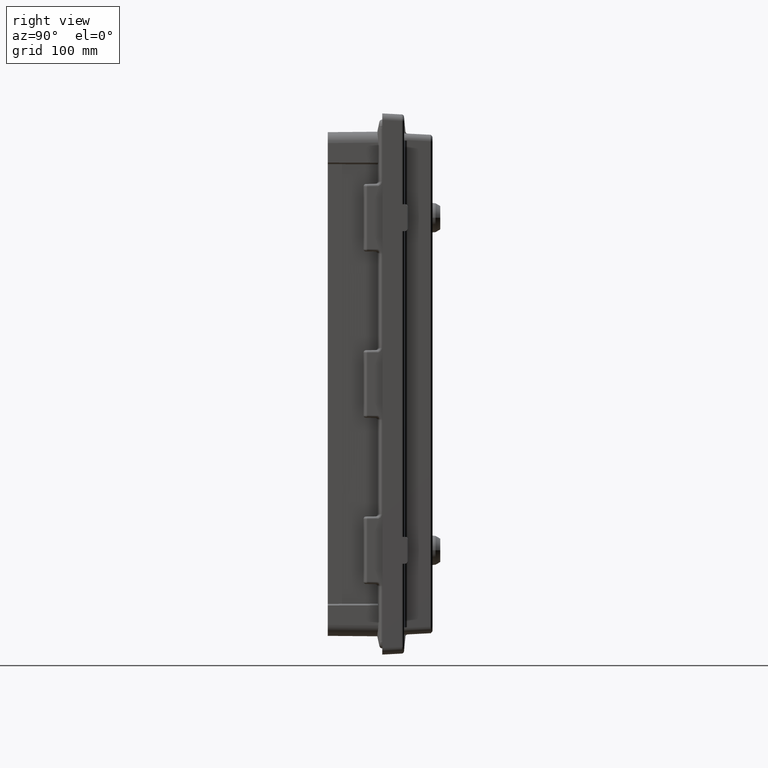
[diagram: clean part render]
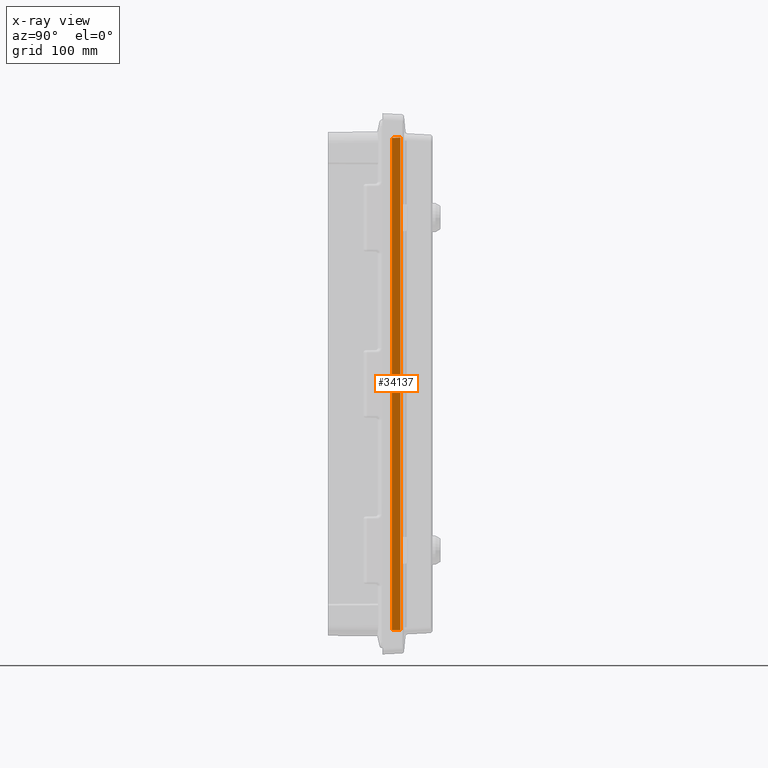
[diagram: x-ray — body ghosted, one internal face saturated and labeled with its STEP entity id]
A machine part, right view, then the same camera in x-ray: the body is ghosted and one INTERNAL B-rep face — a face not visible from any outside direction — is saturated and labeled: STEP entity #34137.
In plain terms, the highlighted planar face has unit normal (0.9986, -0.0523, 0).
Its self-contained STEP definition (entity closure, byte-faithful):
#18650=CARTESIAN_POINT('',(1.889447656382E2,7.160835542470E0,2.059702598365E2));
#18662=CARTESIAN_POINT('',(1.885694821497E2,0.E0,2.056014697794E2));
#19184=DIRECTION('',(5.226687669747E-2,9.973114185050E-1,-5.136251668214E-2));
#19185=VECTOR('',#19184,7.180139933828E0);
#19186=CARTESIAN_POINT('',(1.885694821497E2,0.E0,-2.056014697794E2));
#19187=LINE('',#19186,#19185);
#19188=DIRECTION('',(0.E0,0.E0,-1.E0));
#19189=VECTOR('',#19188,4.112029395588E2);
#19190=CARTESIAN_POINT('',(1.885694821497E2,0.E0,2.056014697794E2));
#19191=LINE('',#19190,#19189);
#19192=DIRECTION('',(-5.226687669746E-2,-9.973114185050E-1,-5.136251668214E-2));
#19193=VECTOR('',#19192,7.180139933828E0);
#19194=CARTESIAN_POINT('',(1.889447656382E2,7.160835542470E0,2.059702598365E2));
#19195=LINE('',#19194,#19193);
#19196=DIRECTION('',(0.E0,0.E0,1.E0));
#19197=VECTOR('',#19196,4.119405196730E2);
#19198=CARTESIAN_POINT('',(1.889447656382E2,7.160835542470E0,
-2.059702598365E2));
#19199=LINE('',#19198,#19197);
#29031=VERTEX_POINT('',#18650);
#29032=CARTESIAN_POINT('',(1.889447656382E2,7.160835542470E0,
-2.059702598365E2));
#29033=VERTEX_POINT('',#29032);
#29065=VERTEX_POINT('',#18662);
#29066=CARTESIAN_POINT('',(1.885694821497E2,0.E0,-2.056014697794E2));
#29067=VERTEX_POINT('',#29066);
#34126=CARTESIAN_POINT('',(1.885694821497E2,0.E0,-2.05E2));
#34127=DIRECTION('',(9.986295347546E-1,-5.233595624294E-2,0.E0));
#34128=DIRECTION('',(5.233595624294E-2,9.986295347546E-1,0.E0));
#34129=AXIS2_PLACEMENT_3D('',#34126,#34127,#34128);
#34130=PLANE('',#34129);
#34131=ORIENTED_EDGE('',*,*,#34119,.F.);
#34132=ORIENTED_EDGE('',*,*,#30538,.F.);
#34133=ORIENTED_EDGE('',*,*,#33589,.F.);
#34134=ORIENTED_EDGE('',*,*,#33605,.F.);
#34135=EDGE_LOOP('',(#34131,#34132,#34133,#34134));
#34136=FACE_OUTER_BOUND('',#34135,.F.);
#34137=ADVANCED_FACE('',(#34136),#34130,.T.);
#30538=EDGE_CURVE('',#29065,#29067,#19191,.T.);
#33589=EDGE_CURVE('',#29031,#29065,#19195,.T.);
#33605=EDGE_CURVE('',#29033,#29031,#19199,.T.);
#34119=EDGE_CURVE('',#29067,#29033,#19187,.T.);